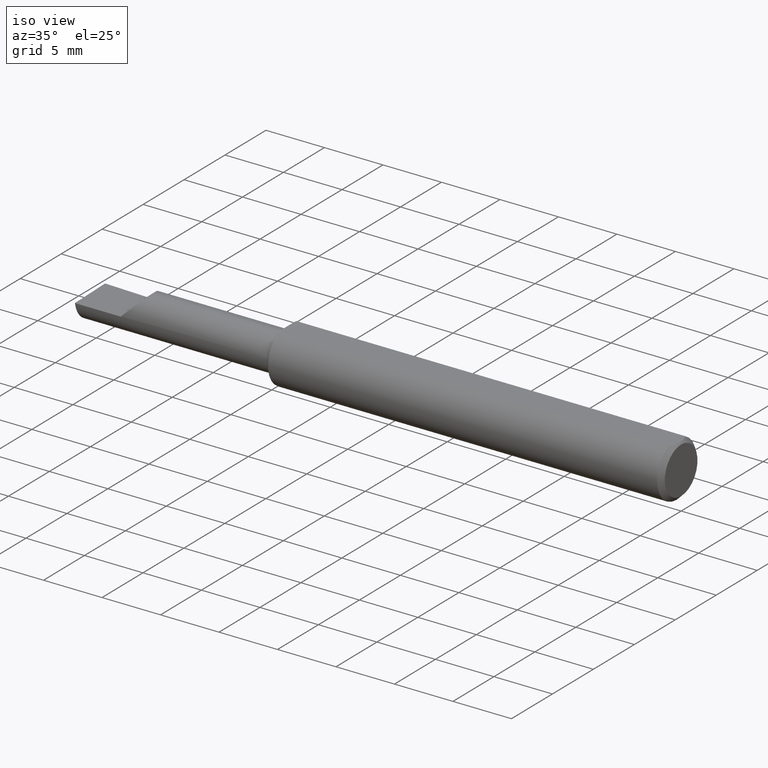
[diagram: clean part render]
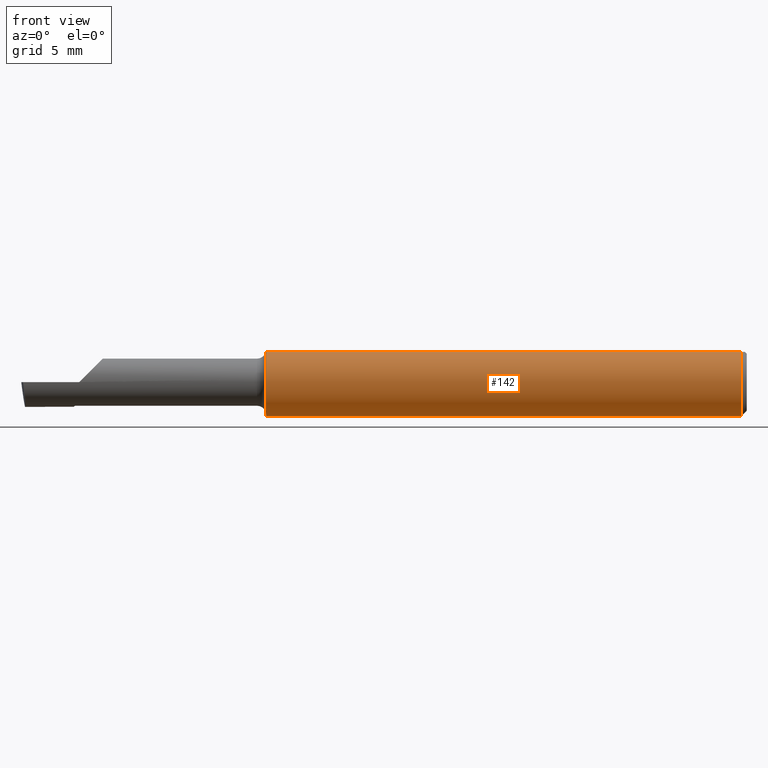
[diagram: tour spotlight — one face highlighted and labeled with its STEP entity id]
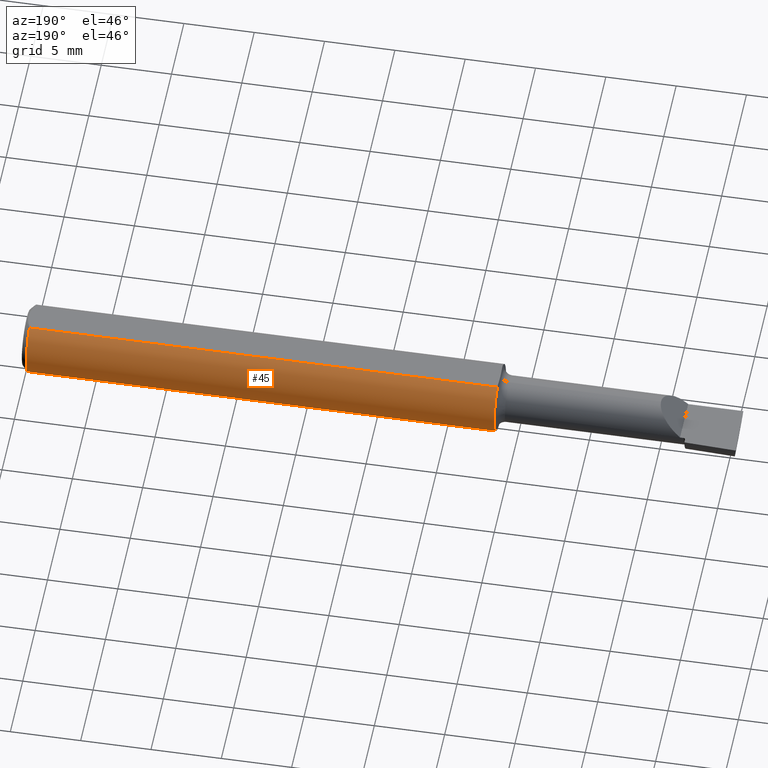
[diagram: tour spotlight — one face highlighted and labeled with its STEP entity id]
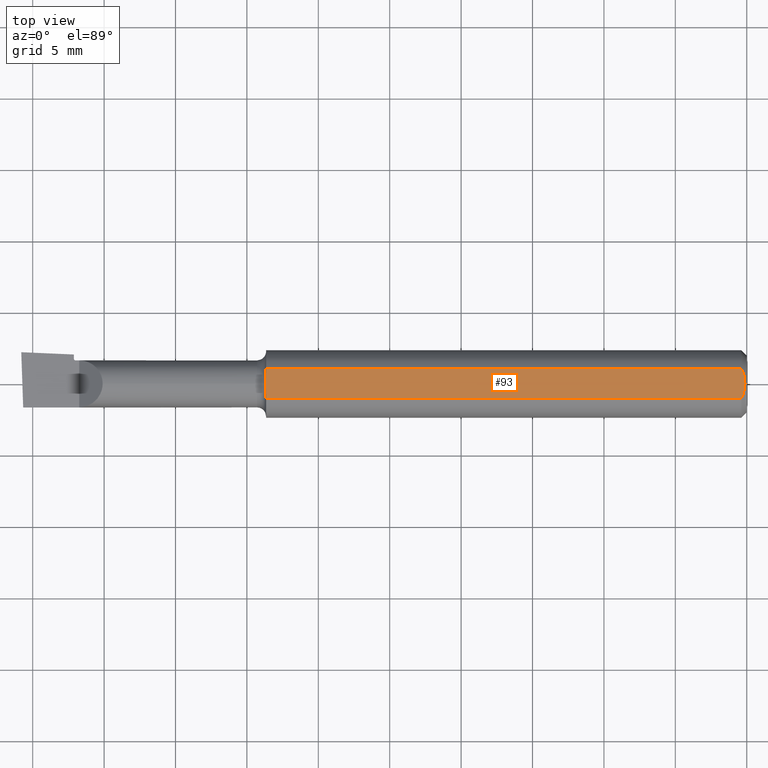
[diagram: tour spotlight — one face highlighted and labeled with its STEP entity id]
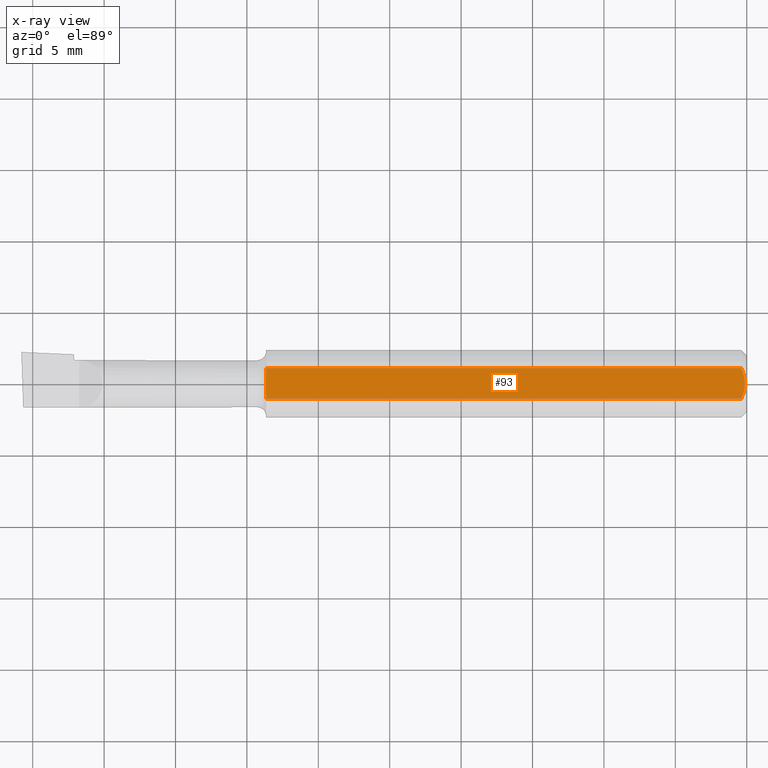
[diagram: x-ray of the same camera — body ghosted, this tour face saturated]
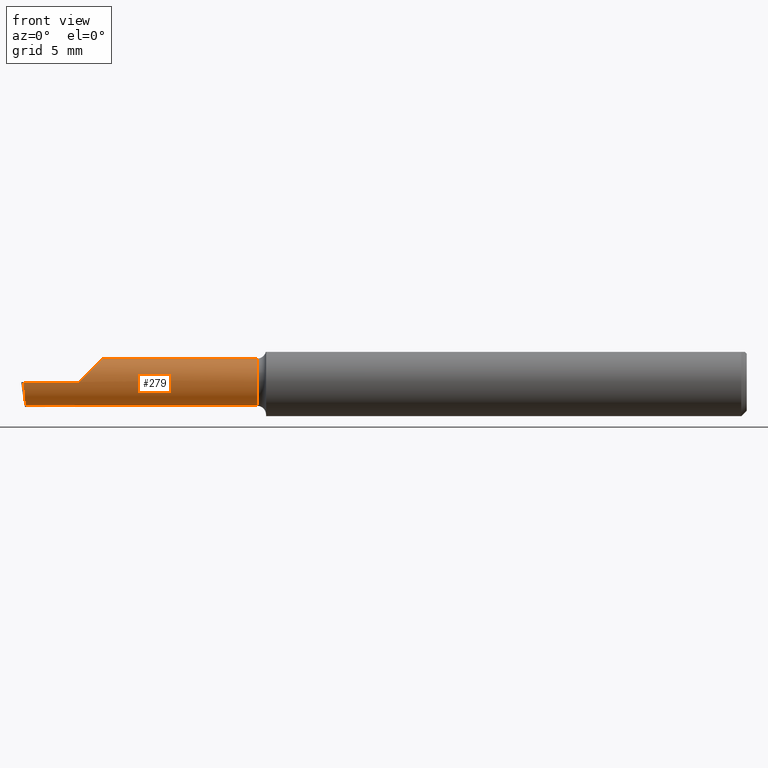
[diagram: tour spotlight — one face highlighted and labeled with its STEP entity id]
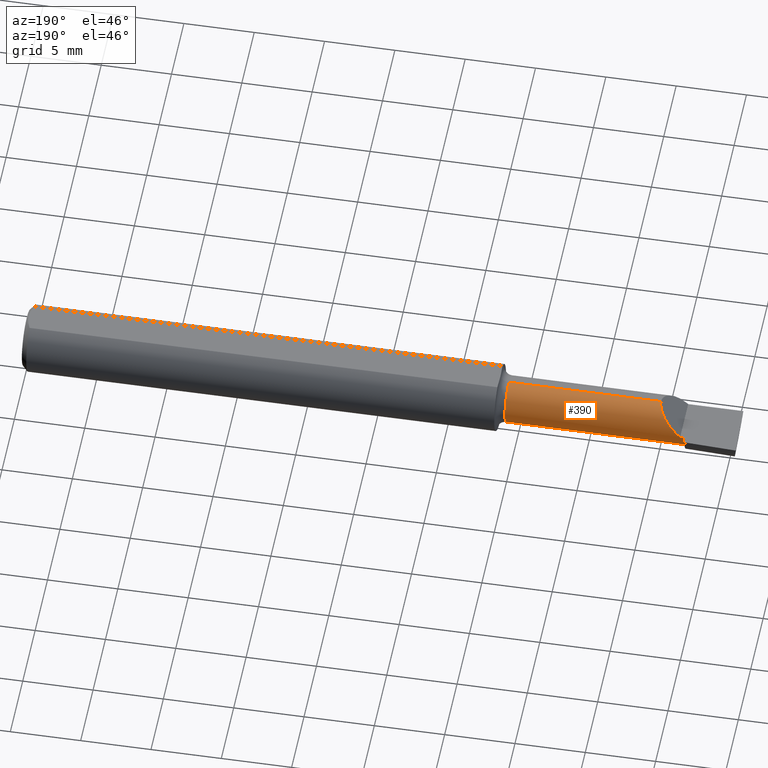
[diagram: tour spotlight — one face highlighted and labeled with its STEP entity id]
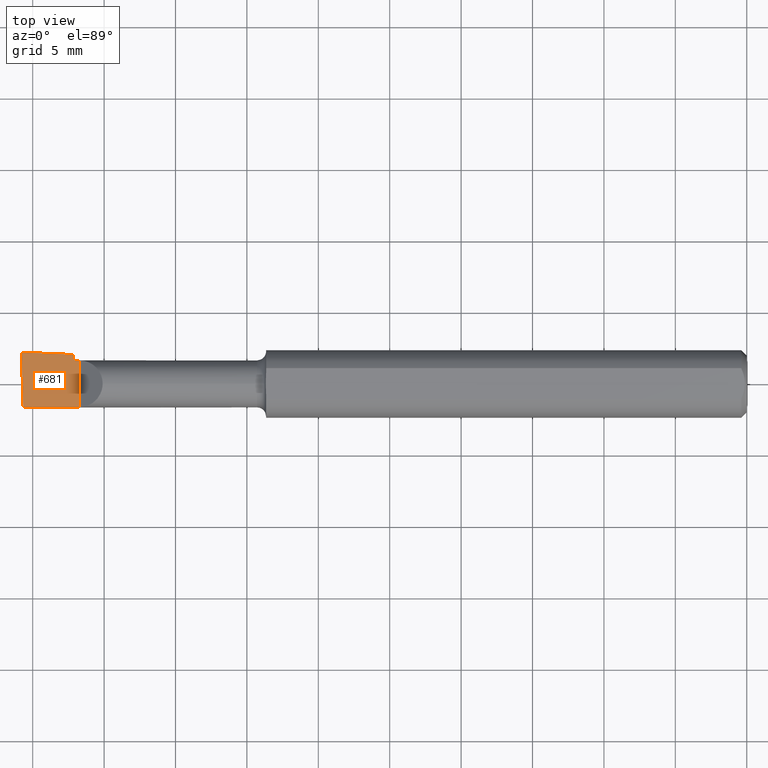
[diagram: tour spotlight — one face highlighted and labeled with its STEP entity id]
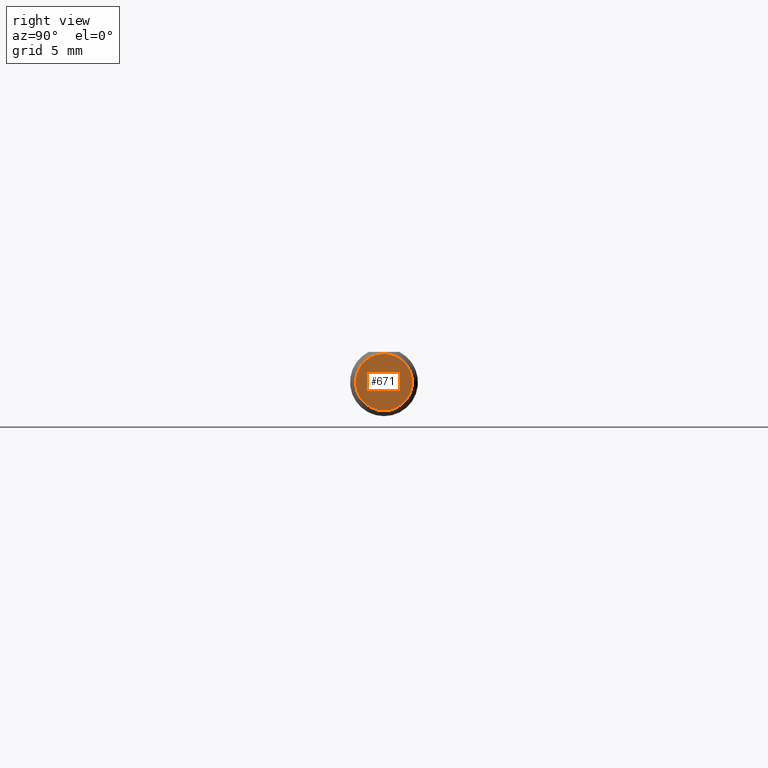
[diagram: tour spotlight — one face highlighted and labeled with its STEP entity id]
A machine part: a face-by-face anatomy tour. The part has 20 B-rep faces; the first image is the clean iso view, then the 7 largest visible faces are spotlighted one at a time (largest first), each with its STEP entity span.

Face 1 — front view, entity #142. In plain terms, the highlighted cylindrical surface (edge-blend (fillet) strip) has radius 2.3774 mm, axis along (1, -0, -0).
Definition (entity closure, byte-faithful):
#4 = DIRECTION ( 'NONE',  ( 1.000000000000000000, -0.000000000000000000, -0.000000000000000000 ) ) ;
#29 = VECTOR ( 'NONE', #325, 39.37007874015748143 ) ;
#96 = CIRCLE ( 'NONE', #429, 0.09360000000000001652 ) ;
#104 = DIRECTION ( 'NONE',  ( -1.000000000000000000, 0.000000000000000000, 0.000000000000000000 ) ) ;
#106 = ORIENTED_EDGE ( 'NONE', *, *, #370, .T. ) ;
#116 = VECTOR ( 'NONE', #4, 39.37007874015748143 ) ;
#142 = ADVANCED_FACE ( 'NONE', ( #173 ), #397, .T. ) ;
#153 = EDGE_LOOP ( 'NONE', ( #106, #504, #610, #187 ) ) ;
#160 = CARTESIAN_POINT ( 'NONE',  ( -2.000000000000000444, 0.000000000000000000, -0.09360000000000001652 ) ) ;
#173 = FACE_OUTER_BOUND ( 'NONE', #153, .T. ) ;
#175 = CARTESIAN_POINT ( 'NONE',  ( -0.01500000000000134212, -0.04209513035969836975, 0.08360000000000000764 ) ) ;
#187 = ORIENTED_EDGE ( 'NONE', *, *, #295, .T. ) ;
#256 = VERTEX_POINT ( 'NONE', #642 ) ;
#263 = AXIS2_PLACEMENT_3D ( 'NONE', #434, #104, #329 ) ;
#264 = CARTESIAN_POINT ( 'NONE',  ( -1.325000000000000178, 0.000000000000000000, 0.000000000000000000 ) ) ;
#266 = LINE ( 'NONE', #369, #29 ) ;
#295 = EDGE_CURVE ( 'NONE', #542, #585, #266, .T. ) ;
#307 = EDGE_CURVE ( 'NONE', #256, #453, #660, .T. ) ;
#308 = CARTESIAN_POINT ( 'NONE',  ( -2.000000000000000444, 0.000000000000000000, 0.000000000000000000 ) ) ;
#314 = AXIS2_PLACEMENT_3D ( 'NONE', #308, #703, #356 ) ;
#325 = DIRECTION ( 'NONE',  ( -1.000000000000000000, 0.000000000000000000, 0.000000000000000000 ) ) ;
#329 = DIRECTION ( 'NONE',  ( 0.000000000000000000, 0.000000000000000000, 1.000000000000000000 ) ) ;
#356 = DIRECTION ( 'NONE',  ( 0.000000000000000000, 0.000000000000000000, -1.000000000000000000 ) ) ;
#369 = CARTESIAN_POINT ( 'NONE',  ( -2.000000000000000444, -0.04209513035969843220, 0.08359999999999997988 ) ) ;
#370 = EDGE_CURVE ( 'NONE', #585, #256, #96, .T. ) ;
#380 = DIRECTION ( 'NONE',  ( 0.000000000000000000, 0.000000000000000000, 1.000000000000000000 ) ) ;
#385 = CARTESIAN_POINT ( 'NONE',  ( -1.325000000000000844, -0.04209513035969843220, 0.08359999999999997988 ) ) ;
#397 = CYLINDRICAL_SURFACE ( 'NONE', #314, 0.09360000000000001652 ) ;
#429 = AXIS2_PLACEMENT_3D ( 'NONE', #264, #598, #380 ) ;
#433 = EDGE_CURVE ( 'NONE', #453, #542, #517, .T. ) ;
#434 = CARTESIAN_POINT ( 'NONE',  ( -0.01500000000000134212, 0.000000000000000000, 0.000000000000000000 ) ) ;
#453 = VERTEX_POINT ( 'NONE', #612 ) ;
#504 = ORIENTED_EDGE ( 'NONE', *, *, #307, .T. ) ;
#517 = CIRCLE ( 'NONE', #263, 0.09360000000000001652 ) ;
#542 = VERTEX_POINT ( 'NONE', #175 ) ;
#585 = VERTEX_POINT ( 'NONE', #385 ) ;
#598 = DIRECTION ( 'NONE',  ( 1.000000000000000000, -0.000000000000000000, -0.000000000000000000 ) ) ;
#610 = ORIENTED_EDGE ( 'NONE', *, *, #433, .T. ) ;
#612 = CARTESIAN_POINT ( 'NONE',  ( -0.01500000000000134212, 0.000000000000000000, -0.09360000000000001652 ) ) ;
#642 = CARTESIAN_POINT ( 'NONE',  ( -1.325000000000000178, 0.000000000000000000, -0.09360000000000001652 ) ) ;
#660 = LINE ( 'NONE', #160, #116 ) ;
#703 = DIRECTION ( 'NONE',  ( 1.000000000000000000, -0.000000000000000000, -0.000000000000000000 ) ) ;

Face 2 — auxiliary view, entity #45. In plain terms, the highlighted cylindrical surface (edge-blend (fillet) strip) has radius 2.3774 mm, axis along (1, -0, -0).
Definition (entity closure, byte-faithful):
#4 = DIRECTION ( 'NONE',  ( 1.000000000000000000, -0.000000000000000000, -0.000000000000000000 ) ) ;
#5 = ORIENTED_EDGE ( 'NONE', *, *, #358, .T. ) ;
#6 = CIRCLE ( 'NONE', #406, 0.09360000000000001652 ) ;
#8 = CARTESIAN_POINT ( 'NONE',  ( -2.000000000000000444, 0.04209513035969843220, 0.08359999999999997988 ) ) ;
#32 = VERTEX_POINT ( 'NONE', #566 ) ;
#42 = DIRECTION ( 'NONE',  ( -1.000000000000000000, 0.000000000000000000, 0.000000000000000000 ) ) ;
#45 = ADVANCED_FACE ( 'NONE', ( #403 ), #394, .T. ) ;
#79 = ORIENTED_EDGE ( 'NONE', *, *, #307, .F. ) ;
#108 = VERTEX_POINT ( 'NONE', #228 ) ;
#116 = VECTOR ( 'NONE', #4, 39.37007874015748143 ) ;
#147 = DIRECTION ( 'NONE',  ( 0.000000000000000000, -8.881784197001252323E-16, 1.000000000000000000 ) ) ;
#160 = CARTESIAN_POINT ( 'NONE',  ( -2.000000000000000444, 0.000000000000000000, -0.09360000000000001652 ) ) ;
#216 = AXIS2_PLACEMENT_3D ( 'NONE', #364, #42, #634 ) ;
#228 = CARTESIAN_POINT ( 'NONE',  ( -1.325000000000000178, 0.04209513035969839750, 0.08359999999999999376 ) ) ;
#242 = CIRCLE ( 'NONE', #216, 0.09360000000000001652 ) ;
#256 = VERTEX_POINT ( 'NONE', #642 ) ;
#260 = EDGE_CURVE ( 'NONE', #32, #453, #242, .T. ) ;
#307 = EDGE_CURVE ( 'NONE', #256, #453, #660, .T. ) ;
#331 = CARTESIAN_POINT ( 'NONE',  ( -1.325000000000000178, 0.000000000000000000, 0.000000000000000000 ) ) ;
#358 = EDGE_CURVE ( 'NONE', #256, #108, #6, .T. ) ;
#364 = CARTESIAN_POINT ( 'NONE',  ( -0.01500000000000134212, 0.000000000000000000, 0.000000000000000000 ) ) ;
#389 = CARTESIAN_POINT ( 'NONE',  ( -2.000000000000000444, 0.000000000000000000, 0.000000000000000000 ) ) ;
#394 = CYLINDRICAL_SURFACE ( 'NONE', #656, 0.09360000000000001652 ) ;
#403 = FACE_OUTER_BOUND ( 'NONE', #435, .T. ) ;
#406 = AXIS2_PLACEMENT_3D ( 'NONE', #331, #539, #147 ) ;
#435 = EDGE_LOOP ( 'NONE', ( #79, #5, #466, #473 ) ) ;
#453 = VERTEX_POINT ( 'NONE', #612 ) ;
#456 = DIRECTION ( 'NONE',  ( 0.000000000000000000, 0.000000000000000000, -1.000000000000000000 ) ) ;
#466 = ORIENTED_EDGE ( 'NONE', *, *, #583, .T. ) ;
#473 = ORIENTED_EDGE ( 'NONE', *, *, #260, .T. ) ;
#499 = DIRECTION ( 'NONE',  ( 1.000000000000000000, -0.000000000000000000, -0.000000000000000000 ) ) ;
#539 = DIRECTION ( 'NONE',  ( 1.000000000000000000, -0.000000000000000000, -0.000000000000000000 ) ) ;
#566 = CARTESIAN_POINT ( 'NONE',  ( -0.01500000000000134212, 0.04209513035969836975, 0.08360000000000000764 ) ) ;
#583 = EDGE_CURVE ( 'NONE', #108, #32, #663, .T. ) ;
#588 = VECTOR ( 'NONE', #499, 39.37007874015748143 ) ;
#612 = CARTESIAN_POINT ( 'NONE',  ( -0.01500000000000134212, 0.000000000000000000, -0.09360000000000001652 ) ) ;
#621 = DIRECTION ( 'NONE',  ( 1.000000000000000000, -0.000000000000000000, -0.000000000000000000 ) ) ;
#634 = DIRECTION ( 'NONE',  ( 0.000000000000000000, 0.000000000000000000, 1.000000000000000000 ) ) ;
#642 = CARTESIAN_POINT ( 'NONE',  ( -1.325000000000000178, 0.000000000000000000, -0.09360000000000001652 ) ) ;
#656 = AXIS2_PLACEMENT_3D ( 'NONE', #389, #621, #456 ) ;
#660 = LINE ( 'NONE', #160, #116 ) ;
#663 = LINE ( 'NONE', #8, #588 ) ;

Face 3 — top view, entity #93. An x-ray twin of the same camera follows (body ghosted, this face saturated) — the face is partly hidden behind the body. In plain terms, the highlighted planar face has unit normal (0, 0, 1).
Definition (entity closure, byte-faithful):
#7 = VECTOR ( 'NONE', #252, 39.37007874015748143 ) ;
#8 = CARTESIAN_POINT ( 'NONE',  ( -2.000000000000000444, 0.04209513035969843220, 0.08359999999999997988 ) ) ;
#10 = LINE ( 'NONE', #674, #458 ) ;
#25 = CARTESIAN_POINT ( 'NONE',  ( -1.325833080461093383, 0.005588935856989981320, 0.08360000000000000764 ) ) ;
#29 = VECTOR ( 'NONE', #325, 39.37007874015748143 ) ;
#32 = VERTEX_POINT ( 'NONE', #566 ) ;
#34 = CARTESIAN_POINT ( 'NONE',  ( -1.325000000000000400, 0.04793338999999999933, 0.08360000000000000764 ) ) ;
#49 = CARTESIAN_POINT ( 'NONE',  ( -0.01201717249260179921, -0.03546270869223500793, 0.08360000000000000764 ) ) ;
#51 = CARTESIAN_POINT ( 'NONE',  ( -0.009490183762107763307, -0.02858203235736569633, 0.08359999999999997988 ) ) ;
#69 = CARTESIAN_POINT ( 'NONE',  ( -1.325833080461093383, 0.000000000000000000, 0.08360000000000000764 ) ) ;
#93 = ADVANCED_FACE ( 'NONE', ( #508 ), #276, .T. ) ;
#108 = VERTEX_POINT ( 'NONE', #228 ) ;
#123 = CARTESIAN_POINT ( 'NONE',  ( -1.325000000000000400, 0.03333226664959939439, 0.08360000000000000764 ) ) ;
#135 = CARTESIAN_POINT ( 'NONE',  ( -0.005000000000001126807, -9.681310491162589007E-19, 0.08360000000000000764 ) ) ;
#164 = EDGE_LOOP ( 'NONE', ( #683, #262, #328, #576, #707, #417, #506, #214 ) ) ;
#166 = DIRECTION ( 'NONE',  ( 1.000000000000000000, 0.000000000000000000, -0.000000000000000000 ) ) ;
#171 = EDGE_CURVE ( 'NONE', #108, #704, #198, .T. ) ;
#175 = CARTESIAN_POINT ( 'NONE',  ( -0.01500000000000134212, -0.04209513035969836975, 0.08360000000000000764 ) ) ;
#180 = CARTESIAN_POINT ( 'NONE',  ( -1.325000000000000178, -0.02777769619494438805, 0.08360000000000000764 ) ) ;
#189 = CARTESIAN_POINT ( 'NONE',  ( -0.005970397401143990104, 0.01447703772316297037, 0.08359999999999997988 ) ) ;
#193 = CARTESIAN_POINT ( 'NONE',  ( -0.01202691846405174250, 0.03548437920186246070, 0.08360000000000000764 ) ) ;
#198 = LINE ( 'NONE', #34, #7 ) ;
#213 = B_SPLINE_CURVE_WITH_KNOTS ( 'NONE', 3,
 ( #467, #193, #350, #189, #410, #577 ),
 .UNSPECIFIED., .F., .F.,
 ( 4, 2, 4 ),
 ( 0.003229436762482374140, 0.003781973469718829042, 0.004334510176955284379 ),
 .UNSPECIFIED. ) ;
#214 = ORIENTED_EDGE ( 'NONE', *, *, #652, .F. ) ;
#228 = CARTESIAN_POINT ( 'NONE',  ( -1.325000000000000178, 0.04209513035969839750, 0.08359999999999999376 ) ) ;
#232 = B_SPLINE_CURVE_WITH_KNOTS ( 'NONE', 3,
 ( #299, #682, #244, #568, #180, #686 ),
 .UNSPECIFIED., .F., .F.,
 ( 4, 2, 4 ),
 ( 8.028707275784671734E-19, 0.0004232511140544140561, 0.0008465022281088272448 ),
 .UNSPECIFIED. ) ;
#244 = CARTESIAN_POINT ( 'NONE',  ( -1.325666797554632348, -0.01111010775634522704, 0.08360000000000000764 ) ) ;
#252 = DIRECTION ( 'NONE',  ( 0.000000000000000000, -1.000000000000000000, 0.000000000000000000 ) ) ;
#262 = ORIENTED_EDGE ( 'NONE', *, *, #171, .T. ) ;
#266 = LINE ( 'NONE', #369, #29 ) ;
#276 = PLANE ( 'NONE',  #402 ) ;
#286 = DIRECTION ( 'NONE',  ( 0.000000000000000000, 0.000000000000000000, 1.000000000000000000 ) ) ;
#295 = EDGE_CURVE ( 'NONE', #542, #585, #266, .T. ) ;
#299 = CARTESIAN_POINT ( 'NONE',  ( -1.325833080461093383, 0.000000000000000000, 0.08360000000000000764 ) ) ;
#310 = CARTESIAN_POINT ( 'NONE',  ( -1.325000000000000400, 0.03333226664959939439, 0.08360000000000000764 ) ) ;
#325 = DIRECTION ( 'NONE',  ( -1.000000000000000000, 0.000000000000000000, 0.000000000000000000 ) ) ;
#328 = ORIENTED_EDGE ( 'NONE', *, *, #659, .T. ) ;
#350 = CARTESIAN_POINT ( 'NONE',  ( -0.009475411754487331542, 0.02854313683484921427, 0.08360000000000000764 ) ) ;
#353 = B_SPLINE_CURVE_WITH_KNOTS ( 'NONE', 3,
 ( #545, #481, #657, #51, #49, #712 ),
 .UNSPECIFIED., .F., .F.,
 ( 4, 2, 4 ),
 ( 0.004334510176955284379, 0.004885670013052439281, 0.005436829849149593316 ),
 .UNSPECIFIED. ) ;
#362 = EDGE_CURVE ( 'NONE', #645, #542, #353, .T. ) ;
#369 = CARTESIAN_POINT ( 'NONE',  ( -2.000000000000000444, -0.04209513035969843220, 0.08359999999999997988 ) ) ;
#385 = CARTESIAN_POINT ( 'NONE',  ( -1.325000000000000844, -0.04209513035969843220, 0.08359999999999997988 ) ) ;
#402 = AXIS2_PLACEMENT_3D ( 'NONE', #497, #286, #166 ) ;
#410 = CARTESIAN_POINT ( 'NONE',  ( -0.004999999999999964542, 0.007317184349923022864, 0.08360000000000000764 ) ) ;
#415 = CARTESIAN_POINT ( 'NONE',  ( -1.325833080461093383, 0.000000000000000000, 0.08360000000000000764 ) ) ;
#417 = ORIENTED_EDGE ( 'NONE', *, *, #295, .F. ) ;
#418 = CARTESIAN_POINT ( 'NONE',  ( -1.325000000000000400, 0.02777908199771310024, 0.08360000000000000764 ) ) ;
#458 = VECTOR ( 'NONE', #558, 39.37007874015748143 ) ;
#465 = EDGE_CURVE ( 'NONE', #492, #585, #10, .T. ) ;
#467 = CARTESIAN_POINT ( 'NONE',  ( -0.01500000000000134212, 0.04209513035969836975, 0.08360000000000000764 ) ) ;
#481 = CARTESIAN_POINT ( 'NONE',  ( -0.004999999999999928113, -0.007298950593105400959, 0.08360000000000000764 ) ) ;
#492 = VERTEX_POINT ( 'NONE', #616 ) ;
#497 = CARTESIAN_POINT ( 'NONE',  ( 1.999986001855434736, 0.04793338999999999933, 0.08360000000000000764 ) ) ;
#499 = DIRECTION ( 'NONE',  ( 1.000000000000000000, -0.000000000000000000, -0.000000000000000000 ) ) ;
#506 = ORIENTED_EDGE ( 'NONE', *, *, #362, .F. ) ;
#508 = FACE_OUTER_BOUND ( 'NONE', #164, .T. ) ;
#512 = CARTESIAN_POINT ( 'NONE',  ( -1.325666838436685646, 0.01110899514292346124, 0.08359999999999997988 ) ) ;
#528 = VERTEX_POINT ( 'NONE', #69 ) ;
#542 = VERTEX_POINT ( 'NONE', #175 ) ;
#545 = CARTESIAN_POINT ( 'NONE',  ( -0.005000000000001126807, -9.681310491162589007E-19, 0.08360000000000000764 ) ) ;
#558 = DIRECTION ( 'NONE',  ( 0.000000000000000000, -1.000000000000000000, 0.000000000000000000 ) ) ;
#566 = CARTESIAN_POINT ( 'NONE',  ( -0.01500000000000134212, 0.04209513035969836975, 0.08360000000000000764 ) ) ;
#568 = CARTESIAN_POINT ( 'NONE',  ( -1.325245929109223786, -0.02222169579276701140, 0.08359999999999997988 ) ) ;
#576 = ORIENTED_EDGE ( 'NONE', *, *, #632, .T. ) ;
#577 = CARTESIAN_POINT ( 'NONE',  ( -0.005000000000001126807, -9.681310491162589007E-19, 0.08360000000000000764 ) ) ;
#583 = EDGE_CURVE ( 'NONE', #108, #32, #663, .T. ) ;
#585 = VERTEX_POINT ( 'NONE', #385 ) ;
#588 = VECTOR ( 'NONE', #499, 39.37007874015748143 ) ;
#608 = B_SPLINE_CURVE_WITH_KNOTS ( 'NONE', 3,
 ( #310, #418, #633, #512, #25, #415 ),
 .UNSPECIFIED., .F., .F.,
 ( 4, 2, 4 ),
 ( 0.008338704319230319864, 0.008764574032678143847, 0.009190443746125967830 ),
 .UNSPECIFIED. ) ;
#616 = CARTESIAN_POINT ( 'NONE',  ( -1.325000000000000400, -0.03333226664959939439, 0.08360000000000000764 ) ) ;
#632 = EDGE_CURVE ( 'NONE', #528, #492, #232, .T. ) ;
#633 = CARTESIAN_POINT ( 'NONE',  ( -1.325245918354429397, 0.02222201299681646550, 0.08360000000000000764 ) ) ;
#645 = VERTEX_POINT ( 'NONE', #135 ) ;
#652 = EDGE_CURVE ( 'NONE', #32, #645, #213, .T. ) ;
#657 = CARTESIAN_POINT ( 'NONE',  ( -0.005988786662026858963, -0.01457103041618879220, 0.08360000000000000764 ) ) ;
#659 = EDGE_CURVE ( 'NONE', #704, #528, #608, .T. ) ;
#663 = LINE ( 'NONE', #8, #588 ) ;
#674 = CARTESIAN_POINT ( 'NONE',  ( -1.325000000000000400, 0.04793338999999999933, 0.08360000000000000764 ) ) ;
#682 = CARTESIAN_POINT ( 'NONE',  ( -1.325833080461093605, -0.005554570454655047111, 0.08360000000000000764 ) ) ;
#683 = ORIENTED_EDGE ( 'NONE', *, *, #583, .F. ) ;
#686 = CARTESIAN_POINT ( 'NONE',  ( -1.325000000000000400, -0.03333226664959939439, 0.08360000000000000764 ) ) ;
#704 = VERTEX_POINT ( 'NONE', #123 ) ;
#707 = ORIENTED_EDGE ( 'NONE', *, *, #465, .T. ) ;
#712 = CARTESIAN_POINT ( 'NONE',  ( -0.01500000000000134212, -0.04209513035969836975, 0.08360000000000000764 ) ) ;

Face 4 — front view, entity #279. In plain terms, the highlighted cylindrical surface (edge-blend (fillet) strip) has radius 1.651 mm, axis along (1, -0, -0).
Definition (entity closure, byte-faithful):
#19 = CARTESIAN_POINT ( 'NONE',  ( -1.350000000000000089, 0.000000000000000000, 0.06500000000000000222 ) ) ;
#31 = CARTESIAN_POINT ( 'NONE',  ( -1.850000000000000311, 0.000000000000000000, 0.000000000000000000 ) ) ;
#33 = CARTESIAN_POINT ( 'NONE',  ( -1.990306868116583416, -0.06488589007838074796, -0.03560733930374125611 ) ) ;
#38 = AXIS2_PLACEMENT_3D ( 'NONE', #637, #86, #128 ) ;
#43 = ORIENTED_EDGE ( 'NONE', *, *, #146, .F. ) ;
#47 = CARTESIAN_POINT ( 'NONE',  ( -1.840000000000000302, -0.06499723071023873200, 0.0005999999999998856725 ) ) ;
#52 = ORIENTED_EDGE ( 'NONE', *, *, #162, .T. ) ;
#53 = EDGE_LOOP ( 'NONE', ( #52, #129, #702, #191, #653, #55, #43, #575, #580, #375 ) ) ;
#55 = ORIENTED_EDGE ( 'NONE', *, *, #324, .T. ) ;
#57 = DIRECTION ( 'NONE',  ( 1.000000000000000000, -0.000000000000000000, -0.000000000000000000 ) ) ;
#59 = VECTOR ( 'NONE', #57, 39.37007874015748143 ) ;
#74 = CARTESIAN_POINT ( 'NONE',  ( -1.988786421613012667, -0.005665123278597546282, -0.06475265537596341936 ) ) ;
#77 = LINE ( 'NONE', #701, #210 ) ;
#80 = VECTOR ( 'NONE', #327, 39.37007874015748854 ) ;
#86 = DIRECTION ( 'NONE',  ( -1.000000000000000000, 0.000000000000000000, 0.000000000000000000 ) ) ;
#100 = CARTESIAN_POINT ( 'NONE',  ( -1.933783156355727062, -0.06340542776733958108, -0.4961139287315174395 ) ) ;
#109 = LINE ( 'NONE', #229, #59 ) ;
#124 = CARTESIAN_POINT ( 'NONE',  ( -1.850000000000000311, -0.005665123278597552353, -0.06475265537596347487 ) ) ;
#128 = DIRECTION ( 'NONE',  ( 0.000000000000000000, 0.000000000000000000, 1.000000000000000000 ) ) ;
#129 = ORIENTED_EDGE ( 'NONE', *, *, #495, .T. ) ;
#131 = DIRECTION ( 'NONE',  ( 0.000000000000000000, 0.000000000000000000, -1.000000000000000000 ) ) ;
#143 = LINE ( 'NONE', #317, #178 ) ;
#146 = EDGE_CURVE ( 'NONE', #602, #386, #77, .T. ) ;
#148 = EDGE_CURVE ( 'NONE', #520, #554, #143, .T. ) ;
#150 = VECTOR ( 'NONE', #452, 39.37007874015748143 ) ;
#152 = LINE ( 'NONE', #100, #80 ) ;
#162 = EDGE_CURVE ( 'NONE', #520, #567, #679, .T. ) ;
#177 = CIRCLE ( 'NONE', #38, 0.06500000000000000222 ) ;
#178 = VECTOR ( 'NONE', #574, 39.37007874015748143 ) ;
#191 = ORIENTED_EDGE ( 'NONE', *, *, #485, .F. ) ;
#208 = CARTESIAN_POINT ( 'NONE',  ( -1.840000000000000302, -0.06500000000000000222, -1.868634782302818344E-17 ) ) ;
#210 = VECTOR ( 'NONE', #460, 39.37007874015748143 ) ;
#227 = CARTESIAN_POINT ( 'NONE',  ( 0.000000000000000000, -7.960204194457796709E-18, -0.06500000000000000222 ) ) ;
#229 = CARTESIAN_POINT ( 'NONE',  ( 0.000000000000000000, 0.000000000000000000, 0.06500000000000000222 ) ) ;
#258 = CARTESIAN_POINT ( 'NONE',  ( -1.802203592376027119, -0.06464832592881071538, 0.03839640762397353996 ) ) ;
#279 = ADVANCED_FACE ( 'NONE', ( #360 ), #311, .T. ) ;
#298 =( BOUNDED_CURVE ( )  B_SPLINE_CURVE ( 3, ( #525, #33, #363, #74 ),
 .UNSPECIFIED., .F., .F. ) 
 B_SPLINE_CURVE_WITH_KNOTS ( ( 4, 4 ),
 ( 4.991545102299929759, 6.471860874433886579 ),
 .UNSPECIFIED. ) 
 CURVE ( )  GEOMETRIC_REPRESENTATION_ITEM ( )  RATIONAL_B_SPLINE_CURVE ( ( 1.000000000000000000, 0.8255747259062508059, 0.8255747259062508059, 1.000000000000000000 ) ) 
 REPRESENTATION_ITEM ( '' )  );
#311 = CYLINDRICAL_SURFACE ( 'NONE', #430, 0.06500000000000000222 ) ;
#317 = CARTESIAN_POINT ( 'NONE',  ( -1.855000000000000204, -0.005665123278597547149, -0.06475265537596341936 ) ) ;
#321 = AXIS2_PLACEMENT_3D ( 'NONE', #31, #411, #131 ) ;
#324 = EDGE_CURVE ( 'NONE', #428, #386, #518, .T. ) ;
#327 = DIRECTION ( 'NONE',  ( -0.1218275818249038717, -0.003190167502629706348, 0.9925461516413236485 ) ) ;
#359 = CARTESIAN_POINT ( 'NONE',  ( -1.775600000000000511, 0.000000000000000000, 0.06500000000000000222 ) ) ;
#360 = FACE_OUTER_BOUND ( 'NONE', #53, .T. ) ;
#363 = CARTESIAN_POINT ( 'NONE',  ( -1.987938684733187467, -0.04092902741362482860, -0.06166746353248374335 ) ) ;
#371 = VERTEX_POINT ( 'NONE', #536 ) ;
#373 = CARTESIAN_POINT ( 'NONE',  ( -1.775600000000000511, -0.03779801798803838347, 0.06500000000000000222 ) ) ;
#375 = ORIENTED_EDGE ( 'NONE', *, *, #148, .F. ) ;
#386 = VERTEX_POINT ( 'NONE', #208 ) ;
#400 = EDGE_CURVE ( 'NONE', #428, #648, #646, .T. ) ;
#411 = DIRECTION ( 'NONE',  ( 1.000000000000000000, -0.000000000000000000, -0.000000000000000000 ) ) ;
#424 = EDGE_CURVE ( 'NONE', #371, #602, #152, .T. ) ;
#428 = VERTEX_POINT ( 'NONE', #541 ) ;
#430 = AXIS2_PLACEMENT_3D ( 'NONE', #526, #491, #437 ) ;
#437 = DIRECTION ( 'NONE',  ( 0.000000000000000000, 0.000000000000000000, 1.000000000000000000 ) ) ;
#452 = DIRECTION ( 'NONE',  ( 1.000000000000000000, -0.000000000000000000, -0.000000000000000000 ) ) ;
#460 = DIRECTION ( 'NONE',  ( 1.000000000000000000, -0.000000000000000000, -0.000000000000000000 ) ) ;
#478 = DIRECTION ( 'NONE',  ( 1.000000000000000000, -0.000000000000000000, -0.000000000000000000 ) ) ;
#484 = DIRECTION ( 'NONE',  ( 0.000000000000000000, 0.000000000000000000, -1.000000000000000000 ) ) ;
#485 = EDGE_CURVE ( 'NONE', #648, #693, #109, .T. ) ;
#491 = DIRECTION ( 'NONE',  ( 1.000000000000000000, -0.000000000000000000, -0.000000000000000000 ) ) ;
#495 = EDGE_CURVE ( 'NONE', #567, #713, #665, .T. ) ;
#496 = CARTESIAN_POINT ( 'NONE',  ( -1.988786421613012667, -0.005665123278597546282, -0.06475265537596341936 ) ) ;
#518 = CIRCLE ( 'NONE', #592, 0.06500000000000000222 ) ;
#520 = VERTEX_POINT ( 'NONE', #124 ) ;
#525 = CARTESIAN_POINT ( 'NONE',  ( -1.994651770292973358, -0.06499941245296748937, -0.0002089162432946602328 ) ) ;
#526 = CARTESIAN_POINT ( 'NONE',  ( 0.000000000000000000, 0.000000000000000000, 0.000000000000000000 ) ) ;
#536 = CARTESIAN_POINT ( 'NONE',  ( -1.994651770292973358, -0.06499941245296748937, -0.0002089162432946602328 ) ) ;
#541 = CARTESIAN_POINT ( 'NONE',  ( -1.840000000000000302, -0.06499723071023873200, 0.0005999999999998856725 ) ) ;
#554 = VERTEX_POINT ( 'NONE', #496 ) ;
#567 = VERTEX_POINT ( 'NONE', #669 ) ;
#574 = DIRECTION ( 'NONE',  ( -1.000000000000000000, 8.516783790608731163E-18, -1.073631536549218441E-16 ) ) ;
#575 = ORIENTED_EDGE ( 'NONE', *, *, #424, .F. ) ;
#580 = ORIENTED_EDGE ( 'NONE', *, *, #631, .T. ) ;
#592 = AXIS2_PLACEMENT_3D ( 'NONE', #595, #478, #484 ) ;
#595 = CARTESIAN_POINT ( 'NONE',  ( -1.840000000000000302, 0.000000000000000000, 0.000000000000000000 ) ) ;
#602 = VERTEX_POINT ( 'NONE', #641 ) ;
#606 = EDGE_CURVE ( 'NONE', #713, #693, #177, .T. ) ;
#627 = CARTESIAN_POINT ( 'NONE',  ( -1.350000000000000089, -7.960204194457796709E-18, -0.06500000000000000222 ) ) ;
#631 = EDGE_CURVE ( 'NONE', #371, #554, #298, .T. ) ;
#637 = CARTESIAN_POINT ( 'NONE',  ( -1.350000000000000089, 0.000000000000000000, 0.000000000000000000 ) ) ;
#641 = CARTESIAN_POINT ( 'NONE',  ( -1.994677413158865376, -0.06500000000000002998, -6.829619984160658046E-17 ) ) ;
#646 =( BOUNDED_CURVE ( )  B_SPLINE_CURVE ( 3, ( #47, #258, #373, #706 ),
 .UNSPECIFIED., .F., .F. ) 
 B_SPLINE_CURVE_WITH_KNOTS ( ( 4, 4 ),
 ( 4.721619880708331607, 6.283185307179586232 ),
 .UNSPECIFIED. ) 
 CURVE ( )  GEOMETRIC_REPRESENTATION_ITEM ( )  RATIONAL_B_SPLINE_CURVE ( ( 1.000000000000000000, 0.8069085694611359827, 0.8069085694611359827, 1.000000000000000000 ) ) 
 REPRESENTATION_ITEM ( '' )  );
#648 = VERTEX_POINT ( 'NONE', #359 ) ;
#653 = ORIENTED_EDGE ( 'NONE', *, *, #400, .F. ) ;
#665 = LINE ( 'NONE', #227, #150 ) ;
#669 = CARTESIAN_POINT ( 'NONE',  ( -1.850000000000000311, -7.960204194457796709E-18, -0.06500000000000000222 ) ) ;
#679 = CIRCLE ( 'NONE', #321, 0.06500000000000000222 ) ;
#693 = VERTEX_POINT ( 'NONE', #19 ) ;
#701 = CARTESIAN_POINT ( 'NONE',  ( 0.000000000000000000, -0.06500000000000000222, -1.868634782302818344E-17 ) ) ;
#702 = ORIENTED_EDGE ( 'NONE', *, *, #606, .T. ) ;
#706 = CARTESIAN_POINT ( 'NONE',  ( -1.775600000000000511, 0.000000000000000000, 0.06500000000000000222 ) ) ;
#713 = VERTEX_POINT ( 'NONE', #627 ) ;

Face 5 — auxiliary view, entity #390. In plain terms, the highlighted cylindrical surface (edge-blend (fillet) strip) has radius 1.651 mm, axis along (1, -0, -0).
Definition (entity closure, byte-faithful):
#19 = CARTESIAN_POINT ( 'NONE',  ( -1.350000000000000089, 0.000000000000000000, 0.06500000000000000222 ) ) ;
#54 = CYLINDRICAL_SURFACE ( 'NONE', #551, 0.06500000000000000222 ) ;
#57 = DIRECTION ( 'NONE',  ( 1.000000000000000000, -0.000000000000000000, -0.000000000000000000 ) ) ;
#58 = CARTESIAN_POINT ( 'NONE',  ( -1.850000000000000311, 0.06500000000000000222, -1.868634782302818344E-17 ) ) ;
#59 = VECTOR ( 'NONE', #57, 39.37007874015748143 ) ;
#76 = DIRECTION ( 'NONE',  ( 1.000000000000000000, -0.000000000000000000, -0.000000000000000000 ) ) ;
#81 = EDGE_CURVE ( 'NONE', #711, #89, #564, .T. ) ;
#89 = VERTEX_POINT ( 'NONE', #58 ) ;
#109 = LINE ( 'NONE', #229, #59 ) ;
#139 = DIRECTION ( 'NONE',  ( 0.000000000000000000, 0.000000000000000000, -1.000000000000000000 ) ) ;
#150 = VECTOR ( 'NONE', #452, 39.37007874015748143 ) ;
#158 = CARTESIAN_POINT ( 'NONE',  ( -1.840000000000000302, 0.06499723071023873200, 0.0005999999999998856725 ) ) ;
#186 = EDGE_CURVE ( 'NONE', #567, #89, #472, .T. ) ;
#209 = ORIENTED_EDGE ( 'NONE', *, *, #81, .F. ) ;
#212 = CARTESIAN_POINT ( 'NONE',  ( -1.775600000000000511, 0.03779801798803838347, 0.06500000000000000222 ) ) ;
#217 = CARTESIAN_POINT ( 'NONE',  ( 0.000000000000000000, 0.000000000000000000, 0.000000000000000000 ) ) ;
#219 = ORIENTED_EDGE ( 'NONE', *, *, #680, .T. ) ;
#227 = CARTESIAN_POINT ( 'NONE',  ( 0.000000000000000000, -7.960204194457796709E-18, -0.06500000000000000222 ) ) ;
#229 = CARTESIAN_POINT ( 'NONE',  ( 0.000000000000000000, 0.000000000000000000, 0.06500000000000000222 ) ) ;
#234 = CARTESIAN_POINT ( 'NONE',  ( -1.840000000000000302, 0.06499723071023873200, 0.0005999999999998856725 ) ) ;
#270 = FACE_OUTER_BOUND ( 'NONE', #339, .T. ) ;
#285 = AXIS2_PLACEMENT_3D ( 'NONE', #573, #76, #302 ) ;
#291 = ORIENTED_EDGE ( 'NONE', *, *, #495, .F. ) ;
#296 = EDGE_CURVE ( 'NONE', #648, #590, #601, .T. ) ;
#297 = CARTESIAN_POINT ( 'NONE',  ( -1.840000000000000302, 0.06500000000000000222, -1.868634782302818344E-17 ) ) ;
#302 = DIRECTION ( 'NONE',  ( 0.000000000000000000, 0.000000000000000000, -1.000000000000000000 ) ) ;
#315 = EDGE_CURVE ( 'NONE', #693, #713, #531, .T. ) ;
#335 = ORIENTED_EDGE ( 'NONE', *, *, #296, .F. ) ;
#339 = EDGE_LOOP ( 'NONE', ( #291, #357, #209, #219, #335, #677, #607 ) ) ;
#357 = ORIENTED_EDGE ( 'NONE', *, *, #186, .T. ) ;
#359 = CARTESIAN_POINT ( 'NONE',  ( -1.775600000000000511, 0.000000000000000000, 0.06500000000000000222 ) ) ;
#372 = AXIS2_PLACEMENT_3D ( 'NONE', #654, #383, #605 ) ;
#383 = DIRECTION ( 'NONE',  ( -1.000000000000000000, 0.000000000000000000, 0.000000000000000000 ) ) ;
#390 = ADVANCED_FACE ( 'NONE', ( #270 ), #54, .T. ) ;
#444 = CARTESIAN_POINT ( 'NONE',  ( 0.000000000000000000, 0.06500000000000000222, -1.868634782302818344E-17 ) ) ;
#452 = DIRECTION ( 'NONE',  ( 1.000000000000000000, -0.000000000000000000, -0.000000000000000000 ) ) ;
#471 = DIRECTION ( 'NONE',  ( 1.000000000000000000, -0.000000000000000000, -0.000000000000000000 ) ) ;
#472 = CIRCLE ( 'NONE', #662, 0.06500000000000000222 ) ;
#485 = EDGE_CURVE ( 'NONE', #648, #693, #109, .T. ) ;
#487 = CARTESIAN_POINT ( 'NONE',  ( -1.802203592376027119, 0.06464832592881071538, 0.03839640762397353996 ) ) ;
#495 = EDGE_CURVE ( 'NONE', #567, #713, #665, .T. ) ;
#531 = CIRCLE ( 'NONE', #372, 0.06500000000000000222 ) ;
#543 = CARTESIAN_POINT ( 'NONE',  ( -1.775600000000000511, 0.000000000000000000, 0.06500000000000000222 ) ) ;
#550 = DIRECTION ( 'NONE',  ( -1.000000000000000000, 0.000000000000000000, 0.000000000000000000 ) ) ;
#551 = AXIS2_PLACEMENT_3D ( 'NONE', #217, #709, #591 ) ;
#564 = LINE ( 'NONE', #444, #624 ) ;
#567 = VERTEX_POINT ( 'NONE', #669 ) ;
#573 = CARTESIAN_POINT ( 'NONE',  ( -1.840000000000000302, 0.000000000000000000, 0.000000000000000000 ) ) ;
#590 = VERTEX_POINT ( 'NONE', #234 ) ;
#591 = DIRECTION ( 'NONE',  ( 0.000000000000000000, 0.000000000000000000, 1.000000000000000000 ) ) ;
#601 =( BOUNDED_CURVE ( )  B_SPLINE_CURVE ( 3, ( #543, #212, #487, #158 ),
 .UNSPECIFIED., .F., .F. ) 
 B_SPLINE_CURVE_WITH_KNOTS ( ( 4, 4 ),
 ( 0.000000000000000000, 1.561565426471254625 ),
 .UNSPECIFIED. ) 
 CURVE ( )  GEOMETRIC_REPRESENTATION_ITEM ( )  RATIONAL_B_SPLINE_CURVE ( ( 1.000000000000000000, 0.8069085694611359827, 0.8069085694611359827, 1.000000000000000000 ) ) 
 REPRESENTATION_ITEM ( '' )  );
#605 = DIRECTION ( 'NONE',  ( 0.000000000000000000, 0.000000000000000000, 1.000000000000000000 ) ) ;
#607 = ORIENTED_EDGE ( 'NONE', *, *, #315, .T. ) ;
#624 = VECTOR ( 'NONE', #550, 39.37007874015748143 ) ;
#627 = CARTESIAN_POINT ( 'NONE',  ( -1.350000000000000089, -7.960204194457796709E-18, -0.06500000000000000222 ) ) ;
#648 = VERTEX_POINT ( 'NONE', #359 ) ;
#654 = CARTESIAN_POINT ( 'NONE',  ( -1.350000000000000089, 0.000000000000000000, 0.000000000000000000 ) ) ;
#662 = AXIS2_PLACEMENT_3D ( 'NONE', #687, #471, #139 ) ;
#665 = LINE ( 'NONE', #227, #150 ) ;
#669 = CARTESIAN_POINT ( 'NONE',  ( -1.850000000000000311, -7.960204194457796709E-18, -0.06500000000000000222 ) ) ;
#677 = ORIENTED_EDGE ( 'NONE', *, *, #485, .T. ) ;
#680 = EDGE_CURVE ( 'NONE', #711, #590, #696, .T. ) ;
#687 = CARTESIAN_POINT ( 'NONE',  ( -1.850000000000000311, 0.000000000000000000, 0.000000000000000000 ) ) ;
#693 = VERTEX_POINT ( 'NONE', #19 ) ;
#696 = CIRCLE ( 'NONE', #285, 0.06500000000000000222 ) ;
#709 = DIRECTION ( 'NONE',  ( 1.000000000000000000, -0.000000000000000000, -0.000000000000000000 ) ) ;
#711 = VERTEX_POINT ( 'NONE', #297 ) ;
#713 = VERTEX_POINT ( 'NONE', #627 ) ;

Face 6 — top view, entity #681. In plain terms, the highlighted planar face has unit normal (0, 0, 1).
Definition (entity closure, byte-faithful):
#39 = LINE ( 'NONE', #185, #271 ) ;
#58 = CARTESIAN_POINT ( 'NONE',  ( -1.850000000000000311, 0.06500000000000000222, -1.868634782302818344E-17 ) ) ;
#68 = DIRECTION ( 'NONE',  ( 0.000000000000000000, 0.000000000000000000, 1.000000000000000000 ) ) ;
#77 = LINE ( 'NONE', #701, #210 ) ;
#78 = VERTEX_POINT ( 'NONE', #221 ) ;
#81 = EDGE_CURVE ( 'NONE', #711, #89, #564, .T. ) ;
#89 = VERTEX_POINT ( 'NONE', #58 ) ;
#98 = ORIENTED_EDGE ( 'NONE', *, *, #412, .T. ) ;
#102 = DIRECTION ( 'NONE',  ( 0.000000000000000000, 1.000000000000000000, 0.000000000000000000 ) ) ;
#115 = VECTOR ( 'NONE', #102, 39.37007874015748143 ) ;
#138 = CARTESIAN_POINT ( 'NONE',  ( -1.999986001855434736, 0.08759761744008441597, -1.868634782302818344E-17 ) ) ;
#146 = EDGE_CURVE ( 'NONE', #602, #386, #77, .T. ) ;
#149 = ORIENTED_EDGE ( 'NONE', *, *, #423, .F. ) ;
#151 = AXIS2_PLACEMENT_3D ( 'NONE', #691, #584, #351 ) ;
#154 = EDGE_CURVE ( 'NONE', #78, #635, #39, .T. ) ;
#157 = VECTOR ( 'NONE', #251, 39.37007874015748854 ) ;
#167 = PLANE ( 'NONE',  #436 ) ;
#170 = VECTOR ( 'NONE', #649, 39.37007874015748143 ) ;
#185 = CARTESIAN_POINT ( 'NONE',  ( -1.855000000000000204, 0.09359999999999998876, -1.868634782302818344E-17 ) ) ;
#194 = DIRECTION ( 'NONE',  ( 0.000000000000000000, 1.000000000000000000, 0.000000000000000000 ) ) ;
#202 = LINE ( 'NONE', #431, #170 ) ;
#205 = CARTESIAN_POINT ( 'NONE',  ( -1.840000000000000302, 0.09359999999999998876, -1.868634782302818344E-17 ) ) ;
#208 = CARTESIAN_POINT ( 'NONE',  ( -1.840000000000000302, -0.06500000000000000222, -1.868634782302818344E-17 ) ) ;
#210 = VECTOR ( 'NONE', #460, 39.37007874015748143 ) ;
#221 = CARTESIAN_POINT ( 'NONE',  ( -1.855000000000000204, 0.06999999999999999278, -1.868634782302818344E-17 ) ) ;
#246 = CARTESIAN_POINT ( 'NONE',  ( -2.000001177757728232, 0.08803385514183426075, -1.868634782302818344E-17 ) ) ;
#251 = DIRECTION ( 'NONE',  ( 0.03476711780020939890, -0.9993954410141494549, 0.000000000000000000 ) ) ;
#271 = VECTOR ( 'NONE', #194, 39.37007874015748143 ) ;
#273 = EDGE_CURVE ( 'NONE', #89, #78, #494, .T. ) ;
#297 = CARTESIAN_POINT ( 'NONE',  ( -1.840000000000000302, 0.06500000000000000222, -1.868634782302818344E-17 ) ) ;
#322 = LINE ( 'NONE', #205, #115 ) ;
#351 = DIRECTION ( 'NONE',  ( 1.000000000000000000, 0.000000000000000000, 0.000000000000000000 ) ) ;
#352 = ORIENTED_EDGE ( 'NONE', *, *, #619, .T. ) ;
#361 = EDGE_LOOP ( 'NONE', ( #149, #352, #432, #98, #708, #461, #479 ) ) ;
#386 = VERTEX_POINT ( 'NONE', #208 ) ;
#412 = EDGE_CURVE ( 'NONE', #386, #711, #322, .T. ) ;
#423 = EDGE_CURVE ( 'NONE', #655, #635, #202, .T. ) ;
#431 = CARTESIAN_POINT ( 'NONE',  ( -1.996531278631949347, 0.08744678096665912947, -1.920830620545185230E-17 ) ) ;
#432 = ORIENTED_EDGE ( 'NONE', *, *, #146, .T. ) ;
#436 = AXIS2_PLACEMENT_3D ( 'NONE', #622, #68, #678 ) ;
#444 = CARTESIAN_POINT ( 'NONE',  ( 0.000000000000000000, 0.06500000000000000222, -1.868634782302818344E-17 ) ) ;
#455 = LINE ( 'NONE', #246, #157 ) ;
#460 = DIRECTION ( 'NONE',  ( 1.000000000000000000, -0.000000000000000000, -0.000000000000000000 ) ) ;
#461 = ORIENTED_EDGE ( 'NONE', *, *, #273, .T. ) ;
#463 = CARTESIAN_POINT ( 'NONE',  ( -1.855000000000000204, 0.08126739189054085766, -1.894732701424001633E-17 ) ) ;
#479 = ORIENTED_EDGE ( 'NONE', *, *, #154, .T. ) ;
#494 = CIRCLE ( 'NONE', #151, 0.005000000000000083371 ) ;
#516 = FACE_OUTER_BOUND ( 'NONE', #361, .T. ) ;
#550 = DIRECTION ( 'NONE',  ( -1.000000000000000000, 0.000000000000000000, 0.000000000000000000 ) ) ;
#564 = LINE ( 'NONE', #444, #624 ) ;
#584 = DIRECTION ( 'NONE',  ( -0.000000000000000000, -0.000000000000000000, -1.000000000000000000 ) ) ;
#602 = VERTEX_POINT ( 'NONE', #641 ) ;
#619 = EDGE_CURVE ( 'NONE', #655, #602, #455, .T. ) ;
#622 = CARTESIAN_POINT ( 'NONE',  ( -1.840000000000000302, 0.09359999999999998876, -1.868634782302818344E-17 ) ) ;
#624 = VECTOR ( 'NONE', #550, 39.37007874015748143 ) ;
#635 = VERTEX_POINT ( 'NONE', #463 ) ;
#641 = CARTESIAN_POINT ( 'NONE',  ( -1.994677413158865376, -0.06500000000000002998, -6.829619984160658046E-17 ) ) ;
#649 = DIRECTION ( 'NONE',  ( 0.9990482215818576872, -0.04361938736533622213, -0.000000000000000000 ) ) ;
#655 = VERTEX_POINT ( 'NONE', #138 ) ;
#678 = DIRECTION ( 'NONE',  ( 1.000000000000000000, 0.000000000000000000, -0.000000000000000000 ) ) ;
#681 = ADVANCED_FACE ( 'NONE', ( #516 ), #167, .T. ) ;
#691 = CARTESIAN_POINT ( 'NONE',  ( -1.850000000000000311, 0.06999999999999999278, 0.000000000000000000 ) ) ;
#701 = CARTESIAN_POINT ( 'NONE',  ( 0.000000000000000000, -0.06500000000000000222, -1.868634782302818344E-17 ) ) ;
#708 = ORIENTED_EDGE ( 'NONE', *, *, #81, .T. ) ;
#711 = VERTEX_POINT ( 'NONE', #297 ) ;

Face 7 — right view, entity #671. In plain terms, the highlighted planar face has unit normal (-1, 0, -0).
Definition (entity closure, byte-faithful):
#41 = CIRCLE ( 'NONE', #439, 0.07859999999999815745 ) ;
#92 = CARTESIAN_POINT ( 'NONE',  ( 0.000000000000000000, 0.000000000000000000, 0.000000000000000000 ) ) ;
#130 = DIRECTION ( 'NONE',  ( -1.000000000000000000, 0.000000000000000000, -0.000000000000000000 ) ) ;
#184 = CARTESIAN_POINT ( 'NONE',  ( 0.000000000000000000, 0.1773215542719186189, -0.09360000000000001652 ) ) ;
#196 = EDGE_CURVE ( 'NONE', #482, #231, #41, .T. ) ;
#200 = DIRECTION ( 'NONE',  ( 1.000000000000000000, 0.000000000000000000, 0.000000000000000000 ) ) ;
#231 = VERTEX_POINT ( 'NONE', #464 ) ;
#237 = EDGE_CURVE ( 'NONE', #231, #482, #651, .T. ) ;
#247 = DIRECTION ( 'NONE',  ( 0.000000000000000000, 0.000000000000000000, 1.000000000000000000 ) ) ;
#283 = CARTESIAN_POINT ( 'NONE',  ( 0.000000000000000000, 1.054420894065859625E-17, -0.07859999999999815745 ) ) ;
#337 = AXIS2_PLACEMENT_3D ( 'NONE', #366, #200, #579 ) ;
#355 = DIRECTION ( 'NONE',  ( -0.000000000000000000, 0.000000000000000000, 1.000000000000000000 ) ) ;
#366 = CARTESIAN_POINT ( 'NONE',  ( 0.000000000000000000, 0.000000000000000000, 0.000000000000000000 ) ) ;
#439 = AXIS2_PLACEMENT_3D ( 'NONE', #92, #530, #247 ) ;
#457 = PLANE ( 'NONE',  #469 ) ;
#464 = CARTESIAN_POINT ( 'NONE',  ( 0.000000000000000000, 0.000000000000000000, 0.07859999999999815745 ) ) ;
#469 = AXIS2_PLACEMENT_3D ( 'NONE', #184, #130, #355 ) ;
#482 = VERTEX_POINT ( 'NONE', #283 ) ;
#523 = ORIENTED_EDGE ( 'NONE', *, *, #237, .T. ) ;
#530 = DIRECTION ( 'NONE',  ( 1.000000000000000000, 0.000000000000000000, 0.000000000000000000 ) ) ;
#546 = EDGE_LOOP ( 'NONE', ( #523, #658 ) ) ;
#579 = DIRECTION ( 'NONE',  ( 0.000000000000000000, 0.000000000000000000, 1.000000000000000000 ) ) ;
#651 = CIRCLE ( 'NONE', #337, 0.07859999999999815745 ) ;
#658 = ORIENTED_EDGE ( 'NONE', *, *, #196, .T. ) ;
#671 = ADVANCED_FACE ( 'NONE', ( #695 ), #457, .F. ) ;
#695 = FACE_OUTER_BOUND ( 'NONE', #546, .T. ) ;